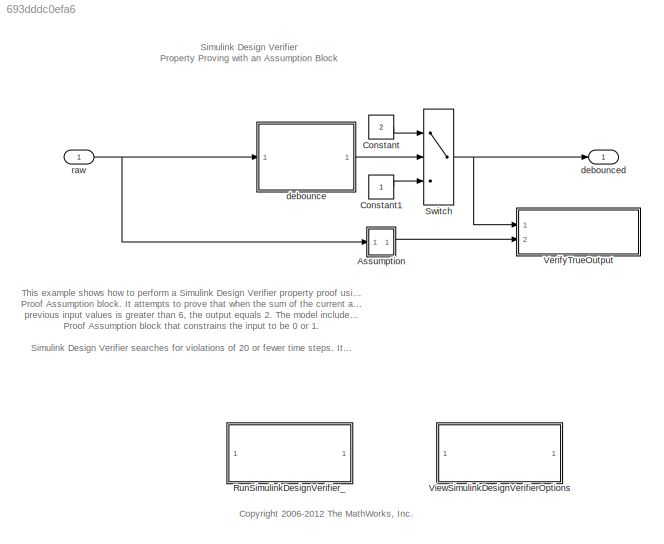
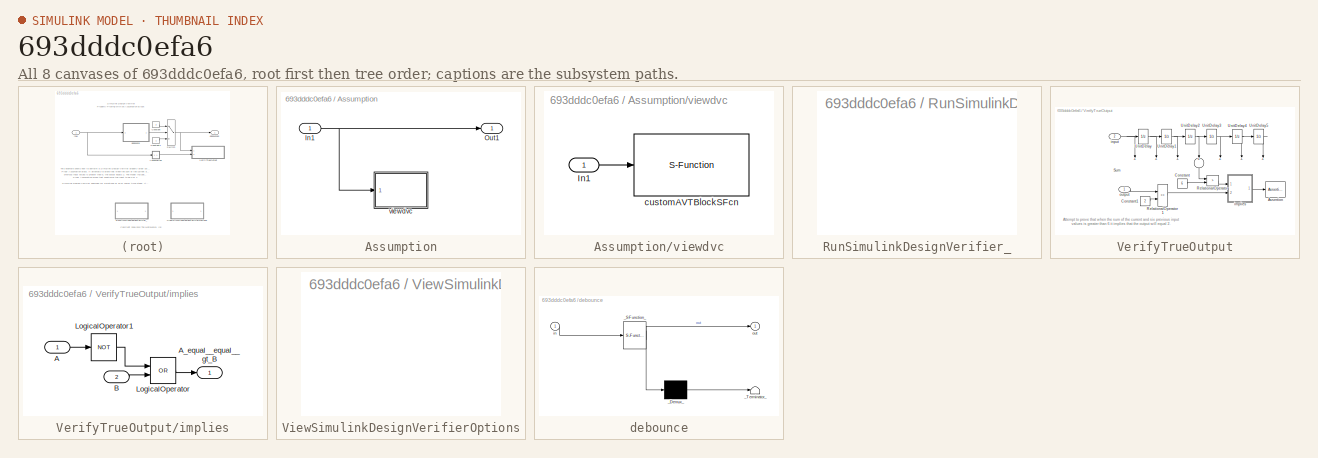
[diagram: thumbnail index - all 8 canvases of the model, root first then tree order]
MODEL slx_693dddc0efa6
KIND model
CONFIG AbsTol = auto
CONFIG EnableMultiTasking = on
CONFIG FixedStep = 0.01
CONFIG MaxStep = auto
CONFIG MinStep = auto
CONFIG RelTol = 1e-3
CONFIG SampleTimeConstraint = Unconstrained
CONFIG Solver = FixedStepDiscrete
CONFIG SolverName = FixedStepDiscrete
CONFIG StartTime = 0.0
CONFIG StopTime = 10.0
WORKSPACE source: MAT-file member
WORKSPACE already_pp = 1
BLOCK [SubSystem] Assumption
  AncestorBlock = sldvlib/Objectives and Constraints/Assumption
  AttributesFormatString = %<intervals>
  Ports = [1, 1]
  RequestExecContextInheritance = off
  TreatAsAtomicUnit = on
  Variant = off
BLOCK [Inport] Assumption/In1
  IconDisplay = Port number
BLOCK [Outport] Assumption/Out1
  IconDisplay = Port number
BLOCK [SubSystem] Assumption/viewdvc
  Ports = [1]
  RequestExecContextInheritance = off
  SimViewingDevice = on
  TreatAsAtomicUnit = on
  Variant = off
BLOCK [Inport] Assumption/viewdvc/In1
  IconDisplay = Port number
BLOCK [S-Function] Assumption/viewdvc/customAVTBlockSFcn
  EnableBusSupport = off
  FunctionName = customAVTBlockSFcn
  Ports = [1]
  SFcnIsStateOwnerBlock = off
  SFunctionDeploymentMode = off
BLOCK [Constant] Constant
  OutDataTypeStr = uint8
  Value = 2
BLOCK [Constant] Constant1
  OutDataTypeStr = uint8
BLOCK [SubSystem] RunSimulinkDesignVerifier_
  AncestorBlock = sldvdemowidgets/Run Simulink Design Verifier
  OpenFcn = sldvdemo_helper('run',gcbh);
  Ports = []
  RequestExecContextInheritance = off
  TreatAsAtomicUnit = on
  Variant = off
BLOCK [Switch] Switch
  Criteria = u2 ~= 0
  InputSameDT = off
  SaturateOnIntegerOverflow = off
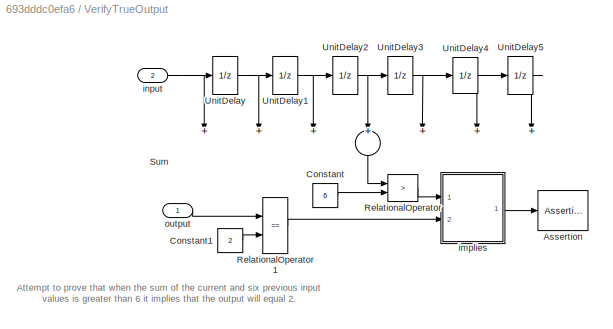
BLOCK [SubSystem] VerifyTrueOutput
  CopyFcn = sldvsubsys('copy');
  DisableCoverage = on
  LoadFcn = sldvsubsys('check')
  Ports = [2]
  PreSaveFcn = set_param(gcb,'SimViewingDevice','on');\nsldvsubsys('check');
  RequestExecContextInheritance = off
  SimViewingDevice = on
  Tag = VerificationSubsystem
  TreatAsAtomicUnit = on
  Variant = off
BLOCK [Assertion] VerifyTrueOutput/Assertion
  StopWhenAssertionFail = off
BLOCK [Constant] VerifyTrueOutput/Constant
  OutDataTypeStr = double
  Value = 6
BLOCK [Constant] VerifyTrueOutput/Constant1
  OutDataTypeStr = uint8
  Value = 2
BLOCK [RelationalOperator] VerifyTrueOutput/RelationalOperator
  InputSameDT = off
  Operator = >
  OutDataTypeStr = boolean
  Ports = [2, 1]
BLOCK [RelationalOperator] VerifyTrueOutput/RelationalOperator1
  InputSameDT = off
  Operator = ==
  OutDataTypeStr = boolean
  Ports = [2, 1]
BLOCK [Sum] VerifyTrueOutput/Sum
  InputSameDT = off
  Inputs = +++++++
  OutDataTypeStr = Inherit: Inherit via internal rule
  Ports = [7, 1]
  SaturateOnIntegerOverflow = off
BLOCK [UnitDelay] VerifyTrueOutput/UnitDelay
  SampleTime = -1
BLOCK [UnitDelay] VerifyTrueOutput/UnitDelay1
  SampleTime = -1
BLOCK [UnitDelay] VerifyTrueOutput/UnitDelay2
  SampleTime = -1
BLOCK [UnitDelay] VerifyTrueOutput/UnitDelay3
  SampleTime = -1
BLOCK [UnitDelay] VerifyTrueOutput/UnitDelay4
  SampleTime = -1
BLOCK [UnitDelay] VerifyTrueOutput/UnitDelay5
  SampleTime = -1
BLOCK [SubSystem] VerifyTrueOutput/implies
  Ports = [2, 1]
  RequestExecContextInheritance = off
  TreatAsAtomicUnit = on
  Variant = off
BLOCK [Inport] VerifyTrueOutput/implies/A
  IconDisplay = Port number
BLOCK [Outport] VerifyTrueOutput/implies/A_equal__equal__gt_B
  IconDisplay = Port number
BLOCK [Inport] VerifyTrueOutput/implies/B
  IconDisplay = Port number
  Port = 2
BLOCK [Logic] VerifyTrueOutput/implies/LogicalOperator
  AllPortsSameDT = off
  Operator = OR
  OutDataTypeStr = boolean
  Ports = [2, 1]
BLOCK [Logic] VerifyTrueOutput/implies/LogicalOperator1
  AllPortsSameDT = off
  Operator = NOT
  OutDataTypeStr = boolean
  Ports = [1, 1]
BLOCK [Inport] VerifyTrueOutput/input
  IconDisplay = Port number
  Port = 2
BLOCK [Inport] VerifyTrueOutput/output
  IconDisplay = Port number
BLOCK [SubSystem] ViewSimulinkDesignVerifierOptions
  AncestorBlock = sldvdemowidgets/View Simulink Design Verifier Options
  OpenFcn = sldvdemo_helper('showopts',gcbh);
  Ports = []
  RequestExecContextInheritance = off
  TreatAsAtomicUnit = on
  Variant = off
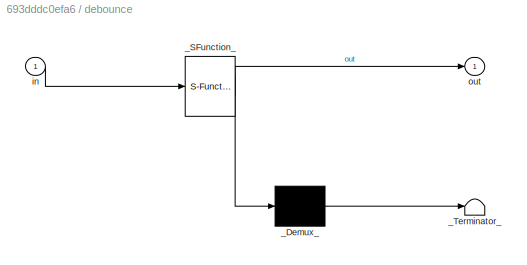
BLOCK [SubSystem] debounce
  ErrorFcn = Stateflow.Translate.translate
  PermitHierarchicalResolution = ExplicitOnly
  Ports = [1, 1]
  RequestExecContextInheritance = off
  SFBlockType = Chart
  TreatAsAtomicUnit = on
  Variant = off
BLOCK [Demux] debounce/_Demux_
  Outputs = 1
  Ports = [1, 1]
BLOCK [S-Function] debounce/_SFunction_
  EnableBusSupport = on
  FunctionName = sf_sfun
  PortCounts = [1 2]
  Ports = [1, 2]
  SFcnIsStateOwnerBlock = off
  SFunctionDeploymentMode = off
  Tag = Stateflow S-Function sldvdemo_debounce_adapted_PP 1
BLOCK [Terminator] debounce/_Terminator_
BLOCK [Inport] debounce/in
  IconDisplay = Port number
BLOCK [Outport] debounce/out
  IconDisplay = Port number
BLOCK [Outport] debounced
  IconDisplay = Port number
  OutDataTypeStr = uint8
BLOCK [Inport] raw
  IconDisplay = Port number
  OutDataTypeStr = double
ANNOTATION (root): <copyright redacted>
ANNOTATION (root): Simulink Design Verifier Property Proving with an Assumption Block
ANNOTATION (root): This example shows how to perform a Simulink Design Verifier property proof using a Proof Assumption block. It attempts to prove that when the sum of the current and six previous input values is greater than 6, the output equals 2. The model includes a Proof Assumption block that constrains the input to be 0 or 1. Simulink Design Verifier searches for violations of 20 or fewer time steps. It is un...<+76ch>
ANNOTATION VerifyTrueOutput: Attempt to prove that when the sum of the current and six previous input values is greater than 6 it implies that the output will equal 2.
LINE Assumption:1 -> VerifyTrueOutput:2
LINE Constant1:1 -> Switch:3
LINE Constant:1 -> Switch:1
NET Switch:1 -> VerifyTrueOutput:1, debounced:1
LINE VerifyTrueOutput/Constant1:1 -> VerifyTrueOutput/RelationalOperator1:2
LINE VerifyTrueOutput/Constant:1 -> VerifyTrueOutput/RelationalOperator:2
LINE VerifyTrueOutput/RelationalOperator1:1 -> VerifyTrueOutput/implies:2
LINE VerifyTrueOutput/RelationalOperator:1 -> VerifyTrueOutput/implies:1
LINE VerifyTrueOutput/Sum:1 -> VerifyTrueOutput/RelationalOperator:1
NET VerifyTrueOutput/UnitDelay1:1 -> VerifyTrueOutput/Sum:3, VerifyTrueOutput/UnitDelay2:1
NET VerifyTrueOutput/UnitDelay2:1 -> VerifyTrueOutput/Sum:4, VerifyTrueOutput/UnitDelay3:1
NET VerifyTrueOutput/UnitDelay3:1 -> VerifyTrueOutput/Sum:5, VerifyTrueOutput/UnitDelay4:1
NET VerifyTrueOutput/UnitDelay4:1 -> VerifyTrueOutput/Sum:6, VerifyTrueOutput/UnitDelay5:1
LINE VerifyTrueOutput/UnitDelay5:1 -> VerifyTrueOutput/Sum:7
NET VerifyTrueOutput/UnitDelay:1 -> VerifyTrueOutput/Sum:2, VerifyTrueOutput/UnitDelay1:1
LINE VerifyTrueOutput/implies/A:1 -> VerifyTrueOutput/implies/LogicalOperator1:1
LINE VerifyTrueOutput/implies/B:1 -> VerifyTrueOutput/implies/LogicalOperator:2
LINE VerifyTrueOutput/implies/LogicalOperator1:1 -> VerifyTrueOutput/implies/LogicalOperator:1
LINE VerifyTrueOutput/implies/LogicalOperator:1 -> VerifyTrueOutput/implies/A_equal__equal__gt_B:1
LINE VerifyTrueOutput/implies:1 -> VerifyTrueOutput/Assertion:1
NET VerifyTrueOutput/input:1 -> VerifyTrueOutput/Sum:1, VerifyTrueOutput/UnitDelay:1
LINE VerifyTrueOutput/output:1 -> VerifyTrueOutput/RelationalOperator1:1
LINE debounce:1 -> Switch:2
NET raw:1 -> Assumption:1, debounce:1
note: NET lines group one-source signal fan-out (src -> all destinations, sorted); 1:1 wires keep LINE
CHART debounce states=4 transitions=7
  STATE_LABEL 'To_on\nen: cnt = 0.0;\ndu: cnt = cnt + 1;'
  STATE_LABEL 'Off\nen: out = false;'
  STATE_LABEL 'To_off\nen: cnt = 0.0;\ndu: cnt = cnt + 1;'
  STATE_LABEL 'On\nen: out = true;'
